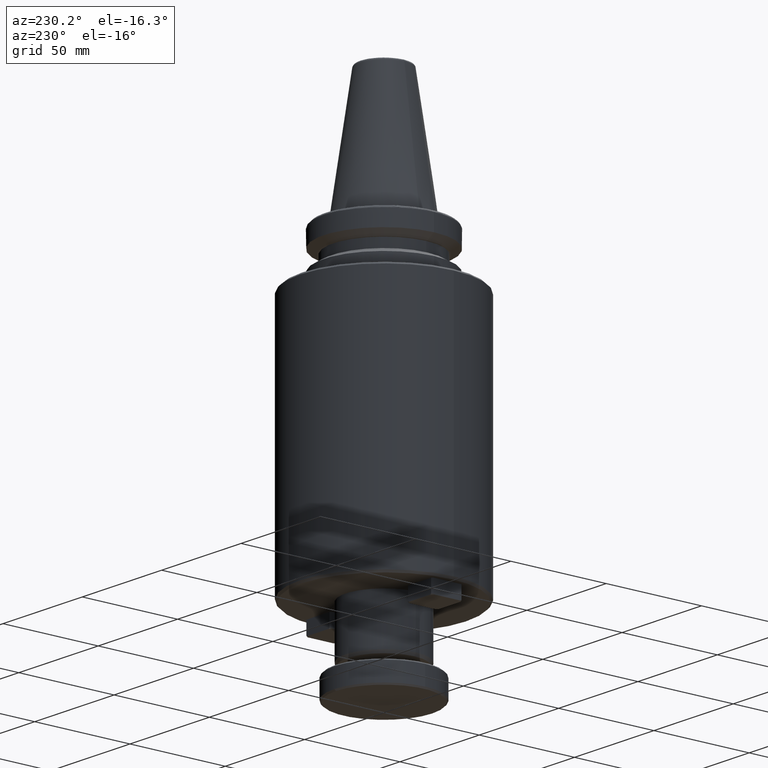
[diagram: clean part render]
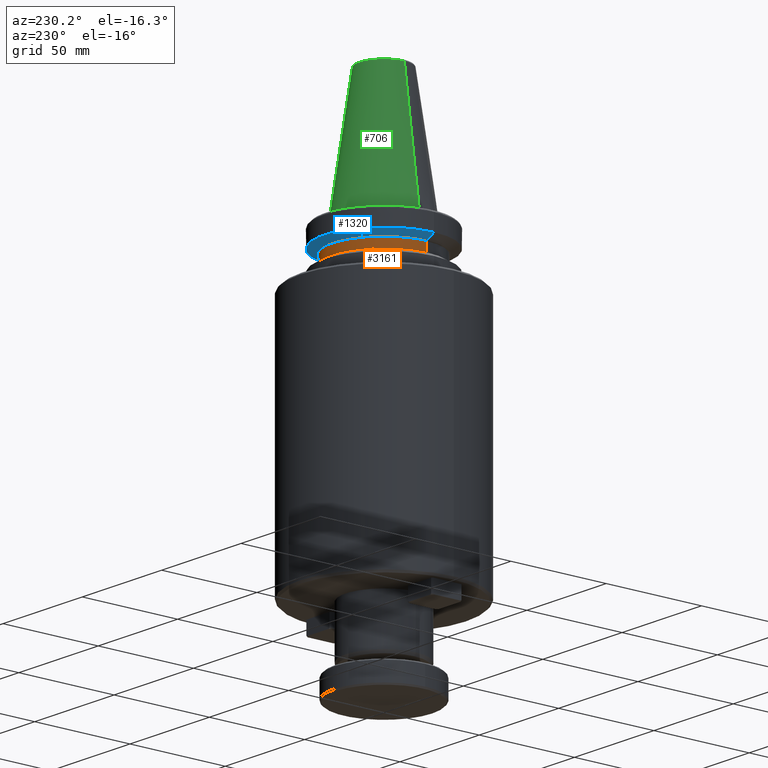
[diagram: same view with three faces highlighted in distinct colors, each labeled with its STEP entity id]
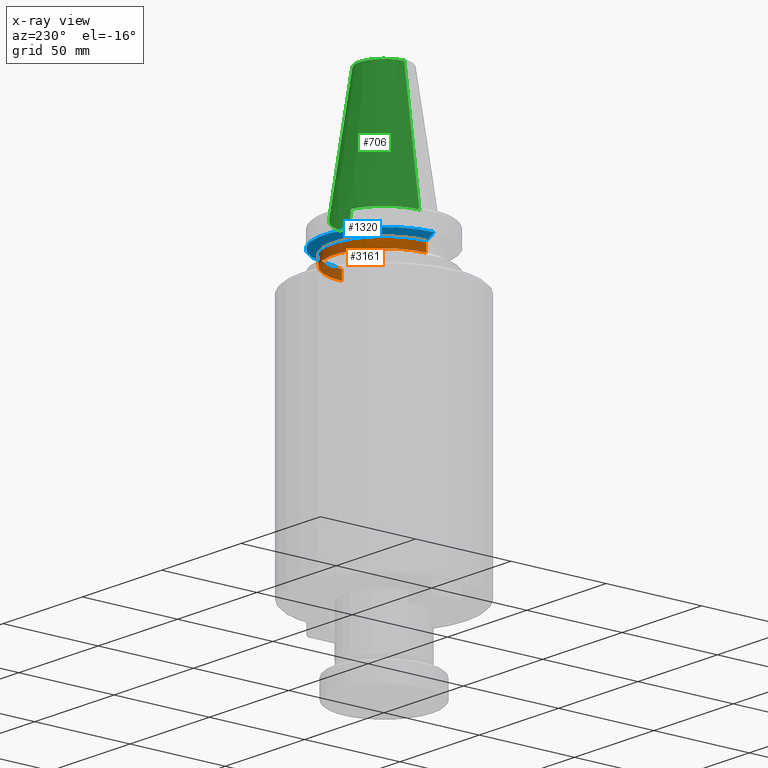
[diagram: x-ray of the same camera — body ghosted, the three highlighted faces saturated]
A machine part, auxiliary view with three faces highlighted in distinct colors.
The next image is the same camera in x-ray (body ghosted, the three faces saturated) — at least one of them is partly hidden behind the body in this view.
Their STEP definitions:

[orange] entity #3161 — the highlighted cylindrical surface (partial cylindrical patch) has radius 26.5 mm, axis along (0, 0, 1).
#55 = ORIENTED_EDGE ( 'NONE', *, *, #1260, .F. ) ;
#211 = LINE ( 'NONE', #1184, #3530 ) ;
#336 = CARTESIAN_POINT ( 'NONE',  ( 0.0000000000000000000, 0.0000000000000000000, 69.75694866325665100 ) ) ;
#346 = DIRECTION ( 'NONE',  ( 0.0000000000000000000, 0.0000000000000000000, 1.000000000000000000 ) ) ;
#348 = DIRECTION ( 'NONE',  ( 1.000000000000000000, 0.0000000000000000000, 0.0000000000000000000 ) ) ;
#377 = ORIENTED_EDGE ( 'NONE', *, *, #2979, .F. ) ;
#385 = VERTEX_POINT ( 'NONE', #588 ) ;
#417 = CARTESIAN_POINT ( 'NONE',  ( 0.0000000000000000000, 0.0000000000000000000, -14.10000000000000100 ) ) ;
#540 = DIRECTION ( 'NONE',  ( 1.000000000000000000, 0.0000000000000000000, 0.0000000000000000000 ) ) ;
#543 = DIRECTION ( 'NONE',  ( -0.0000000000000000000, -0.0000000000000000000, -1.000000000000000000 ) ) ;
#544 = CARTESIAN_POINT ( 'NONE',  ( 0.0000000000000000000, 0.0000000000000000000, -19.10000000000000500 ) ) ;
#588 = CARTESIAN_POINT ( 'NONE',  ( 26.50000000000000000, 0.0000000000000000000, -14.10000000000000100 ) ) ;
#784 = VERTEX_POINT ( 'NONE', #2619 ) ;
#802 = EDGE_CURVE ( 'NONE', #3563, #784, #211, .T. ) ;
#824 = ORIENTED_EDGE ( 'NONE', *, *, #1572, .T. ) ;
#1057 = VERTEX_POINT ( 'NONE', #3254 ) ;
#1151 = CARTESIAN_POINT ( 'NONE',  ( 26.50000000000000000, 0.0000000000000000000, 69.75694866325665100 ) ) ;
#1184 = CARTESIAN_POINT ( 'NONE',  ( -26.50000000000000000, 3.245314017740485800E-015, 69.75694866325665100 ) ) ;
#1260 = EDGE_CURVE ( 'NONE', #1057, #385, #1648, .T. ) ;
#1414 = DIRECTION ( 'NONE',  ( 0.0000000000000000000, 0.0000000000000000000, 1.000000000000000000 ) ) ;
#1469 = AXIS2_PLACEMENT_3D ( 'NONE', #336, #346, #348 ) ;
#1505 = ORIENTED_EDGE ( 'NONE', *, *, #802, .T. ) ;
#1554 = FACE_OUTER_BOUND ( 'NONE', #2958, .T. ) ;
#1568 = CIRCLE ( 'NONE', #2935, 26.50000000000000000 ) ;
#1572 = EDGE_CURVE ( 'NONE', #784, #385, #2360, .T. ) ;
#1648 = LINE ( 'NONE', #1151, #1801 ) ;
#1706 = CARTESIAN_POINT ( 'NONE',  ( -26.50000000000000000, 3.245314017740485800E-015, -19.10000000000000500 ) ) ;
#1801 = VECTOR ( 'NONE', #1414, 1000.000000000000000 ) ;
#2135 = AXIS2_PLACEMENT_3D ( 'NONE', #417, #3437, #3163 ) ;
#2360 = CIRCLE ( 'NONE', #2135, 26.50000000000000000 ) ;
#2607 = DIRECTION ( 'NONE',  ( 0.0000000000000000000, 0.0000000000000000000, 1.000000000000000000 ) ) ;
#2619 = CARTESIAN_POINT ( 'NONE',  ( -26.50000000000000000, 3.245314017740485800E-015, -14.10000000000000100 ) ) ;
#2935 = AXIS2_PLACEMENT_3D ( 'NONE', #544, #543, #540 ) ;
#2958 = EDGE_LOOP ( 'NONE', ( #377, #1505, #824, #55 ) ) ;
#2979 = EDGE_CURVE ( 'NONE', #3563, #1057, #1568, .T. ) ;
#3161 = ADVANCED_FACE ( 'NONE', ( #1554 ), #3266, .T. ) ;
#3163 = DIRECTION ( 'NONE',  ( 1.000000000000000000, 0.0000000000000000000, 0.0000000000000000000 ) ) ;
#3254 = CARTESIAN_POINT ( 'NONE',  ( 26.50000000000000000, 0.0000000000000000000, -19.10000000000000500 ) ) ;
#3266 = CYLINDRICAL_SURFACE ( 'NONE', #1469, 26.50000000000000000 ) ;
#3437 = DIRECTION ( 'NONE',  ( -0.0000000000000000000, -0.0000000000000000000, -1.000000000000000000 ) ) ;
#3530 = VECTOR ( 'NONE', #2607, 1000.000000000000000 ) ;
#3563 = VERTEX_POINT ( 'NONE', #1706 ) ;

[blue] entity #1320 — the highlighted conical surface has half-angle 60 deg.
#122 = ORIENTED_EDGE ( 'NONE', *, *, #3250, .T. ) ;
#148 = DIRECTION ( 'NONE',  ( 1.000000000000000000, 0.0000000000000000000, 0.0000000000000000000 ) ) ;
#151 = DIRECTION ( 'NONE',  ( 0.0000000000000000000, -0.0000000000000000000, 1.000000000000000000 ) ) ;
#153 = CARTESIAN_POINT ( 'NONE',  ( 0.0000000000000000000, 0.0000000000000000000, -14.10000000000000100 ) ) ;
#263 = CIRCLE ( 'NONE', #2001, 27.16962701892216000 ) ;
#339 = CARTESIAN_POINT ( 'NONE',  ( 31.50000000000000000, 0.0000000000000000000, -11.59985799368323700 ) ) ;
#390 = DIRECTION ( 'NONE',  ( 1.000000000000000000, 0.0000000000000000000, -5.507058653894625900E-017 ) ) ;
#614 = AXIS2_PLACEMENT_3D ( 'NONE', #650, #3083, #390 ) ;
#650 = CARTESIAN_POINT ( 'NONE',  ( 0.0000000000000000000, 0.0000000000000000000, -11.59985799368323700 ) ) ;
#736 = EDGE_CURVE ( 'NONE', #1420, #2055, #1810, .T. ) ;
#804 = ORIENTED_EDGE ( 'NONE', *, *, #1740, .F. ) ;
#992 = VECTOR ( 'NONE', #2840, 1000.000000000000000 ) ;
#1050 = CARTESIAN_POINT ( 'NONE',  ( 0.0000000000000000000, 0.0000000000000000000, -11.59985799368323700 ) ) ;
#1263 = CARTESIAN_POINT ( 'NONE',  ( -31.50000000000000000, 3.857637417314162700E-015, -11.59985799368323700 ) ) ;
#1320 = ADVANCED_FACE ( 'NONE', ( #1905 ), #2474, .T. ) ;
#1329 = DIRECTION ( 'NONE',  ( 1.000000000000000000, 0.0000000000000000000, 0.0000000000000000000 ) ) ;
#1344 = LINE ( 'NONE', #339, #992 ) ;
#1374 = VECTOR ( 'NONE', #2030, 1000.000000000000000 ) ;
#1420 = VERTEX_POINT ( 'NONE', #1263 ) ;
#1510 = DIRECTION ( 'NONE',  ( 0.0000000000000000000, -0.0000000000000000000, 1.000000000000000000 ) ) ;
#1694 = ORIENTED_EDGE ( 'NONE', *, *, #2316, .T. ) ;
#1735 = LINE ( 'NONE', #2031, #1374 ) ;
#1740 = EDGE_CURVE ( 'NONE', #1757, #2055, #1344, .T. ) ;
#1757 = VERTEX_POINT ( 'NONE', #2009 ) ;
#1810 = CIRCLE ( 'NONE', #614, 31.50000000000000000 ) ;
#1905 = FACE_OUTER_BOUND ( 'NONE', #3369, .T. ) ;
#1954 = AXIS2_PLACEMENT_3D ( 'NONE', #1050, #1510, #1329 ) ;
#1982 = VERTEX_POINT ( 'NONE', #2931 ) ;
#2001 = AXIS2_PLACEMENT_3D ( 'NONE', #153, #151, #148 ) ;
#2009 = CARTESIAN_POINT ( 'NONE',  ( 27.16962701892216000, 0.0000000000000000000, -14.10000000000000100 ) ) ;
#2030 = DIRECTION ( 'NONE',  ( -0.8660254037844393700, 1.060575238724907800E-016, 0.4999999999999987200 ) ) ;
#2031 = CARTESIAN_POINT ( 'NONE',  ( -31.50000000000000000, 3.857637417314162700E-015, -11.59985799368323700 ) ) ;
#2055 = VERTEX_POINT ( 'NONE', #2852 ) ;
#2316 = EDGE_CURVE ( 'NONE', #1982, #1420, #1735, .T. ) ;
#2465 = ORIENTED_EDGE ( 'NONE', *, *, #736, .T. ) ;
#2474 = CONICAL_SURFACE ( 'NONE', #1954, 31.50000000000000000, 1.047197551196599200 ) ;
#2840 = DIRECTION ( 'NONE',  ( 0.8660254037844393700, 0.0000000000000000000, 0.4999999999999987200 ) ) ;
#2852 = CARTESIAN_POINT ( 'NONE',  ( 31.50000000000000000, 0.0000000000000000000, -11.59985799368323700 ) ) ;
#2931 = CARTESIAN_POINT ( 'NONE',  ( -27.16962701892216000, 3.592478546794604700E-015, -14.10000000000000100 ) ) ;
#3083 = DIRECTION ( 'NONE',  ( -0.0000000000000000000, -0.0000000000000000000, -1.000000000000000000 ) ) ;
#3250 = EDGE_CURVE ( 'NONE', #1757, #1982, #263, .T. ) ;
#3369 = EDGE_LOOP ( 'NONE', ( #122, #1694, #2465, #804 ) ) ;

[green] entity #706 — the highlighted conical surface has half-angle 8.297 deg.
#66 = ORIENTED_EDGE ( 'NONE', *, *, #3453, .T. ) ;
#167 = VERTEX_POINT ( 'NONE', #1033 ) ;
#216 = DIRECTION ( 'NONE',  ( 0.1443082272673070200, 1.767266086135363300E-017, -0.9895327864921743500 ) ) ;
#220 = EDGE_CURVE ( 'NONE', #167, #1719, #2114, .T. ) ;
#383 = VERTEX_POINT ( 'NONE', #661 ) ;
#594 = CARTESIAN_POINT ( 'NONE',  ( 0.0000000000000000000, 0.0000000000000000000, -2.775557561562891400E-014 ) ) ;
#658 = EDGE_CURVE ( 'NONE', #770, #167, #3012, .T. ) ;
#661 = CARTESIAN_POINT ( 'NONE',  ( 12.81219950706225000, 2.145409711370550300E-015, 64.54430822726730800 ) ) ;
#706 = ADVANCED_FACE ( 'NONE', ( #3154 ), #1728, .T. ) ;
#710 = AXIS2_PLACEMENT_3D ( 'NONE', #3494, #2403, #1637 ) ;
#760 = AXIS2_PLACEMENT_3D ( 'NONE', #2092, #2897, #1824 ) ;
#770 = VERTEX_POINT ( 'NONE', #1453 ) ;
#1018 = ORIENTED_EDGE ( 'NONE', *, *, #1339, .T. ) ;
#1033 = CARTESIAN_POINT ( 'NONE',  ( -22.22500000000000100, 0.0000000000000000000, 0.0000000000000000000 ) ) ;
#1208 = DIRECTION ( 'NONE',  ( 0.0000000000000000000, 0.0000000000000000000, -1.000000000000000000 ) ) ;
#1244 = LINE ( 'NONE', #2727, #2708 ) ;
#1339 = EDGE_CURVE ( 'NONE', #770, #383, #2439, .T. ) ;
#1398 = EDGE_LOOP ( 'NONE', ( #1018, #66, #2382, #3524 ) ) ;
#1453 = CARTESIAN_POINT ( 'NONE',  ( -12.81219950706225000, 0.0000000000000000000, 64.54430822726730800 ) ) ;
#1637 = DIRECTION ( 'NONE',  ( -1.000000000000000000, 0.0000000000000000000, 0.0000000000000000000 ) ) ;
#1719 = VERTEX_POINT ( 'NONE', #2493 ) ;
#1722 = CARTESIAN_POINT ( 'NONE',  ( -22.22500000000000500, 0.0000000000000000000, -2.775557561562891400E-014 ) ) ;
#1728 = CONICAL_SURFACE ( 'NONE', #2574, 22.22500000000000500, 0.1448138465474190200 ) ;
#1824 = DIRECTION ( 'NONE',  ( 1.000000000000000000, 0.0000000000000000000, 9.822541477422708000E-017 ) ) ;
#2092 = CARTESIAN_POINT ( 'NONE',  ( 0.0000000000000000000, 0.0000000000000000000, 0.0000000000000000000 ) ) ;
#2114 = CIRCLE ( 'NONE', #760, 22.22500000000000500 ) ;
#2382 = ORIENTED_EDGE ( 'NONE', *, *, #220, .F. ) ;
#2403 = DIRECTION ( 'NONE',  ( 0.0000000000000000000, 0.0000000000000000000, -1.000000000000000000 ) ) ;
#2439 = CIRCLE ( 'NONE', #710, 12.81219950706225000 ) ;
#2493 = CARTESIAN_POINT ( 'NONE',  ( 22.22500000000000100, 2.721777511104992800E-015, 0.0000000000000000000 ) ) ;
#2574 = AXIS2_PLACEMENT_3D ( 'NONE', #594, #1208, #3364 ) ;
#2654 = DIRECTION ( 'NONE',  ( -0.1443082272673070200, 0.0000000000000000000, -0.9895327864921743500 ) ) ;
#2708 = VECTOR ( 'NONE', #216, 1000.000000000000000 ) ;
#2727 = CARTESIAN_POINT ( 'NONE',  ( 22.22500000000000500, 2.721777511104993200E-015, -2.775557561562891400E-014 ) ) ;
#2897 = DIRECTION ( 'NONE',  ( -0.0000000000000000000, -0.0000000000000000000, -1.000000000000000000 ) ) ;
#3012 = LINE ( 'NONE', #1722, #3264 ) ;
#3154 = FACE_OUTER_BOUND ( 'NONE', #1398, .T. ) ;
#3264 = VECTOR ( 'NONE', #2654, 1000.000000000000000 ) ;
#3364 = DIRECTION ( 'NONE',  ( -1.000000000000000000, 0.0000000000000000000, 0.0000000000000000000 ) ) ;
#3453 = EDGE_CURVE ( 'NONE', #383, #1719, #1244, .T. ) ;
#3494 = CARTESIAN_POINT ( 'NONE',  ( 0.0000000000000000000, 0.0000000000000000000, 64.54430822726730800 ) ) ;
#3524 = ORIENTED_EDGE ( 'NONE', *, *, #658, .F. ) ;